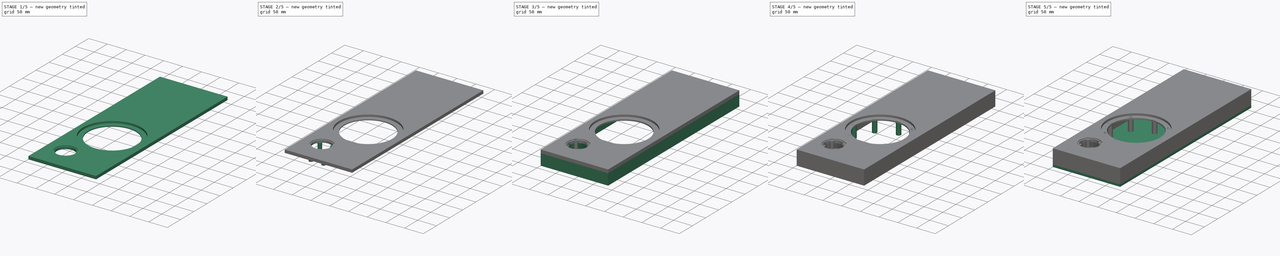
[diagram: build sequence overview — one tinted view per stage of 5, left to right]
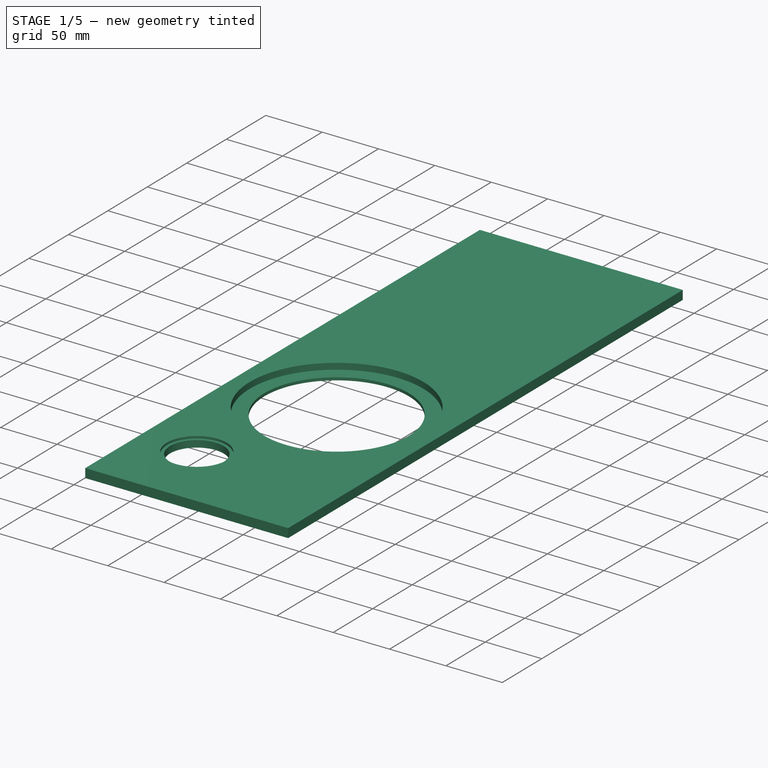
[diagram: stage 1 of 5 — iso view after this stage's code; geometry added in this stage tinted green]
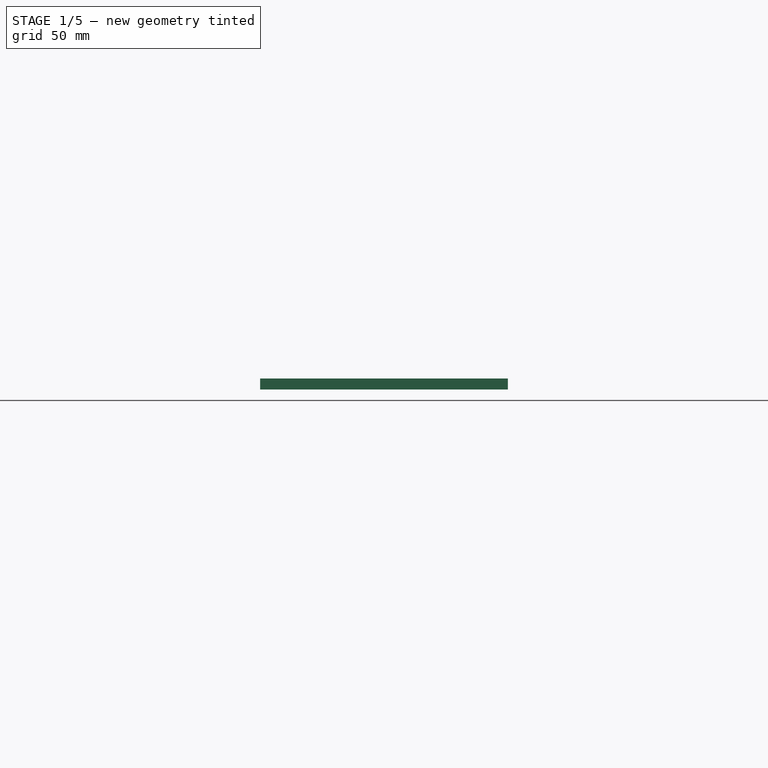
[diagram: stage 1 of 5 — front view after this stage's code; geometry added in this stage tinted green]
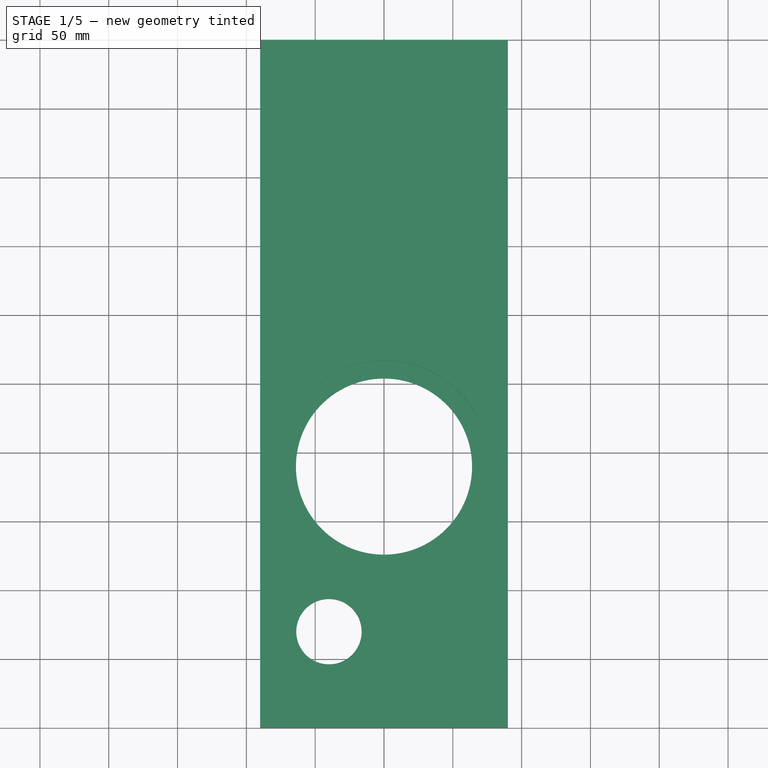
[diagram: stage 1 of 5 — top view after this stage's code; geometry added in this stage tinted green]
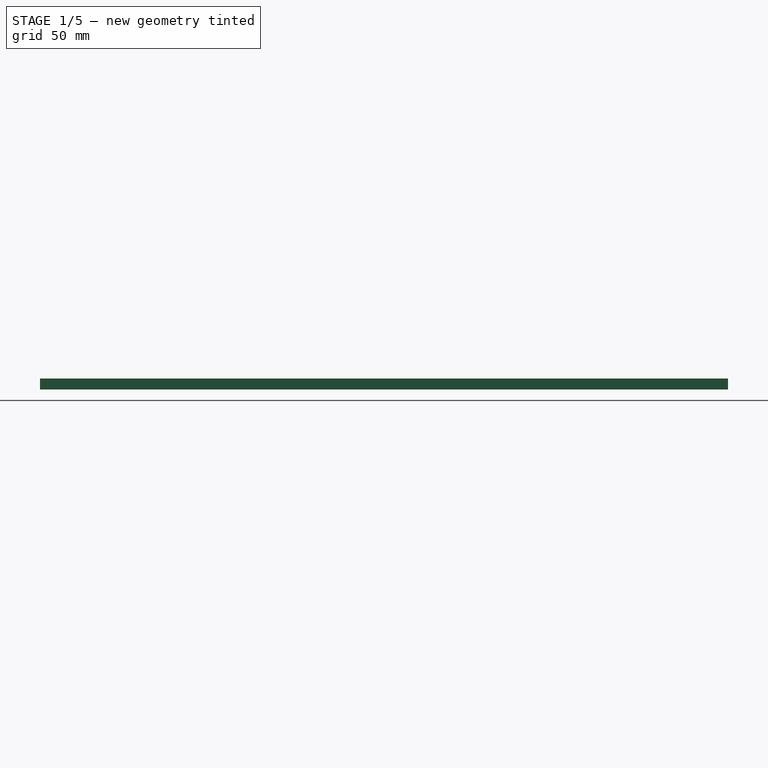
[diagram: stage 1 of 5 — right view after this stage's code; geometry added in this stage tinted green]
FCSTD DOCUMENT  (FreeCAD 0.21R33771 (Git))
Label: baffle3
License: All rights reserved
LicenseURL: http://en.wikipedia.org/wiki/All_rights_reserved
objects: Sketcher::SketchObject×9, PartDesign::Pad×6, PartDesign::Hole×4, PartDesign::PolarPattern×4, PartDesign::AdditiveCylinder×1, Spreadsheet::Sheet×1, PartDesign::Body×1
note: 36 computed .brp shape members not serialized (recipe doc carries the construction recipe); baked Part::Feature solids carry a one-line shape summary decoded from their .brp

FEATURE [Sketcher::SketchObject] Sketch  label="front panel outline"
  FullyConstrained = true
  MapMode = 5
  Placement = pos=(0,0,0) rot=(0,1,0;3.14159rad)
  Support = -> [XY_Plane]
  sketch-geometry (4):
    g0: LineSegment StartX=-90 StartY=500 StartZ=0 EndX=90 EndY=500 EndZ=0
    g1: LineSegment StartX=90 StartY=500 StartZ=0 EndX=90 EndY=0 EndZ=0
    g2: LineSegment StartX=90 StartY=0 StartZ=0 EndX=-90 EndY=0 EndZ=0
    g3: LineSegment StartX=-90 StartY=0 StartZ=0 EndX=-90 EndY=500 EndZ=0
  constraints (11):
    c: Coincident(g0,g1)
    c: Coincident(g1,g2)
    c: Coincident(g2,g3)
    c: Coincident(g3,g0)
    c: Horizontal(g0)
    c: Horizontal(g2)
    c: Vertical(g1)
    c: Vertical(g3)
    c: DistanceY(g3,g3) = 500
    c: DistanceX(g2,g2) = 180
    c: Symmetric(g2,g1,g-1)
FEATURE [PartDesign::Pad] Pad  label="front panel pad"
  Direction = (0,0,-1)
  Length = 8
  Length2 = 10
  Profile = -> Sketch
  ReferenceAxis = -> Sketch [N_Axis]
  Type = 0
  expr: Length = <<Params>>.fp_thickness
FEATURE [Sketcher::SketchObject] Sketch001  label="woofer centre"
  AttachmentOffset = pos=(0,190,0) rot=(0,0,1;0rad)
  FullyConstrained = true
  MapMode = 5
  Placement = pos=(0,190,0) rot=(0,0,1;0rad)
  Support = -> [XY_Plane]
  sketch-geometry (1):
    g0: Circle CenterX=0 CenterY=0 CenterZ=0 NormalX=0 NormalY=0 NormalZ=1 AngleXU=0 Radius=77
  constraints (2):
    c: Diameter(g0) = 154
    c: Coincident(g-1,g0)
FEATURE [PartDesign::Hole] Hole  label="woofer rebated hole"
  BaseFeature = -> Pad
  CustomThreadClearance = 0
  Depth = 25
  DepthType = 0
  Diameter = 128
  DrillForDepth = false
  DrillPoint = 1
  DrillPointAngle = 118
  HoleCutCountersinkAngle = 90
  HoleCutCustomValues = false
  HoleCutDepth = 5.5
  HoleCutDiameter = 154
  HoleCutType = 1
  ModelThread = false
  Profile = -> Sketch001
  Tapered = false
  TaperedAngle = 90
  ThreadClass = 0
  ThreadDepth = 25
  ThreadDepthType = 0
  ThreadDirection = 0
  ThreadFit = 0
  ThreadSize = 0
  ThreadType = 0
  Threaded = false
  UseCustomThreadClearance = false
FEATURE [Sketcher::SketchObject] Sketch002  label="woofer pillar"
  AttachmentOffset = pos=(0,190,-1) rot=(0,0,1;0rad)
  FullyConstrained = true
  MapMode = 5
  Placement = pos=(0,190,-1) rot=(0,0,1;0rad)
  Support = -> [XY_Plane]
  expr: .AttachmentOffset.Base.y = 190
  expr: .AttachmentOffset.Base.z = -1
  sketch-geometry (1):
    g0: Circle CenterX=49.5 CenterY=49.5 CenterZ=0 NormalX=0 NormalY=0 NormalZ=1 AngleXU=0 Radius=6
  constraints (3):
    c: Diameter(g0) = 12
    c: DistanceX(g-1,g0) = 49.5
    c: DistanceY(g-1,g0) = 49.5
FEATURE [Sketcher::SketchObject] Sketch003  label="bmr centre"
  AttachmentOffset = pos=(-40,70,0) rot=(0,0,1;0rad)
  FullyConstrained = true
  MapMode = 5
  Placement = pos=(-40,70,0) rot=(0,0,1;0rad)
  Support = -> [XY_Plane]
  sketch-geometry (1):
    g0: Circle CenterX=0 CenterY=0 CenterZ=0 NormalX=0 NormalY=0 NormalZ=1 AngleXU=0 Radius=20.75
  constraints (2):
    c: Coincident(g-1,g0)
    c: Diameter(g0) = 41.5
FEATURE [PartDesign::Hole] Hole002  label="bmr rebated hole"
  BaseFeature = -> Hole
  CustomThreadClearance = 0
  Depth = 25
  DepthType = 0
  Diameter = 47.5
  DrillForDepth = false
  DrillPoint = 1
  DrillPointAngle = 118
  HoleCutCountersinkAngle = 90
  HoleCutCustomValues = false
  HoleCutDepth = 2
  HoleCutDiameter = 53
  HoleCutType = 1
  ModelThread = false
  Profile = -> Sketch003
  Tapered = false
  TaperedAngle = 90
  ThreadClass = 0
  ThreadDepth = 25
  ThreadDepthType = 0
  ThreadDirection = 0
  ThreadFit = 0
  ThreadSize = 0
  ThreadType = 0
  Threaded = false
  UseCustomThreadClearance = false
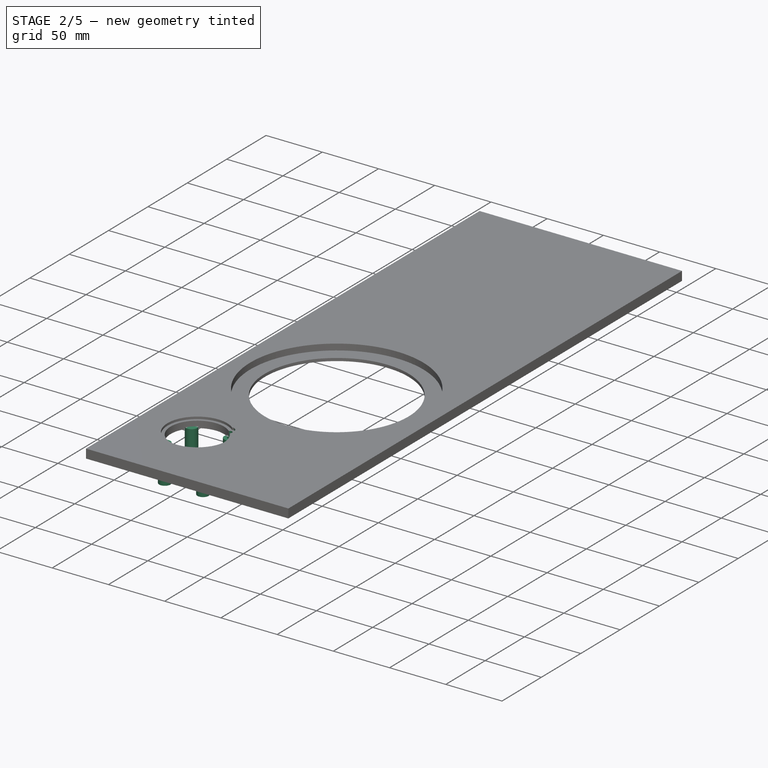
[diagram: stage 2 of 5 — iso view after this stage's code; geometry added in this stage tinted green]
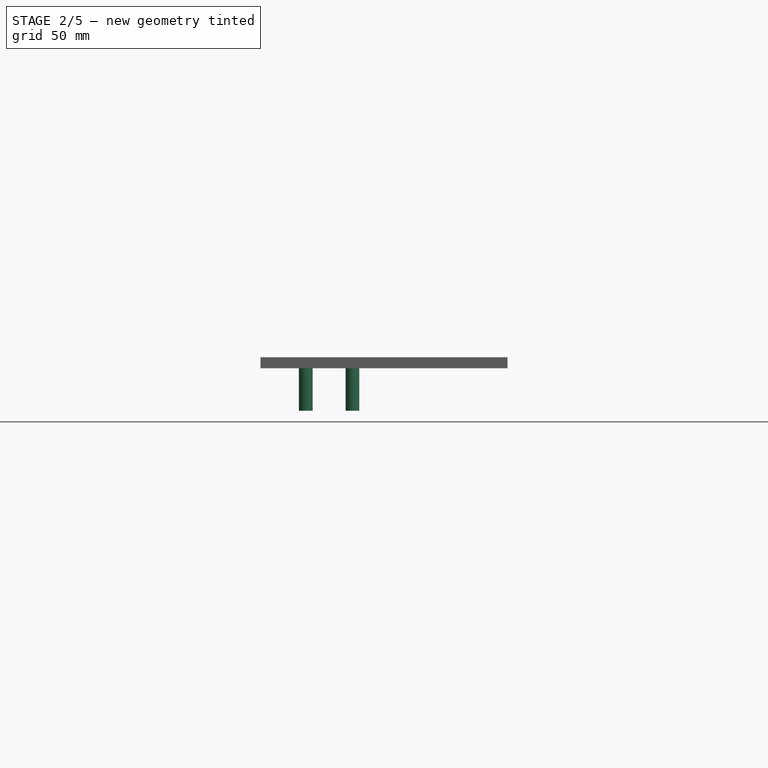
[diagram: stage 2 of 5 — front view after this stage's code; geometry added in this stage tinted green]
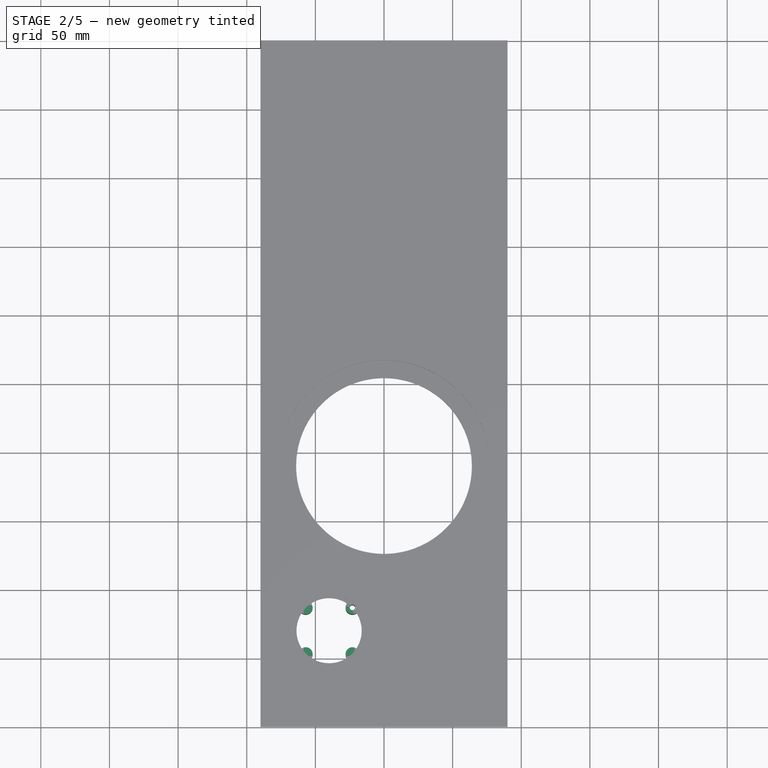
[diagram: stage 2 of 5 — top view after this stage's code; geometry added in this stage tinted green]
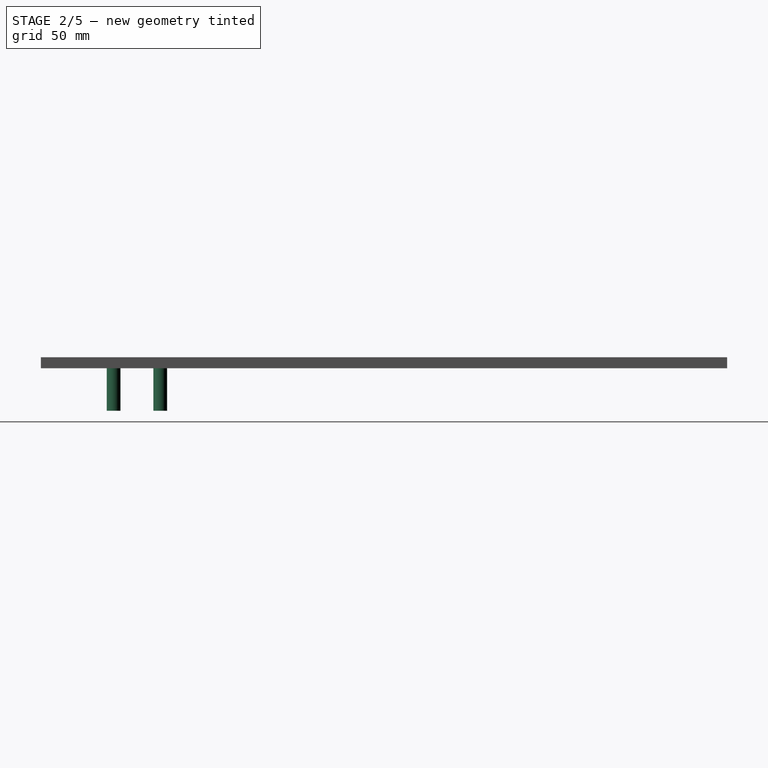
[diagram: stage 2 of 5 — right view after this stage's code; geometry added in this stage tinted green]
FEATURE [Sketcher::SketchObject] Sketch004  label="bmr posts"
  AttachmentOffset = pos=(-40,70,0) rot=(0,0,1;0rad)
  FullyConstrained = true
  MapMode = 5
  Placement = pos=(-40,70,0) rot=(0,0,1;0rad)
  Support = -> [XY_Plane]
  sketch-geometry (1):
    g0: Circle CenterX=17 CenterY=17 CenterZ=0 NormalX=0 NormalY=0 NormalZ=1 AngleXU=0 Radius=6
  constraints (3):
    c: Diameter(g0) = 12
    c: DistanceX(g-1,g0) = 17
    c: DistanceY(g-1,g0) = 17
FEATURE [PartDesign::AdditiveCylinder] Cylinder  label="bmr support pillar"
  Angle = 360
  AttacherType = Attacher::AttachEngine3D
  AttachmentOffset = pos=(0,0,-39) rot=(0,0,1;0rad)
  BaseFeature = -> Hole002
  FirstAngle = 0
  Height = 32.5
  MapMode = 11
  Placement = pos=(-23,87,-39) rot=(0,0,1;1.5708rad)
  Radius = 5
  SecondAngle = 0
  Support = -> [Sketch004]
FEATURE [PartDesign::PolarPattern] PolarPattern001  label="bmr support pillar pattern"
  Angle = 360
  Axis = -> Cylinder [Edge12]
  BaseFeature = -> Cylinder
  Occurrences = 4
  Originals = -> [Cylinder]
  Placement = pos=(-23,87,-39) rot=(0,0,1;1.5708rad)
FEATURE [PartDesign::Hole] Hole003  label="bmr insert hole"
  BaseFeature = -> PolarPattern001
  CustomThreadClearance = 0
  Depth = 1076.34
  DepthType = 1
  Diameter = 4
  DrillForDepth = false
  DrillPoint = 1
  DrillPointAngle = 118
  HoleCutCountersinkAngle = 90
  HoleCutCustomValues = false
  HoleCutDepth = 2
  HoleCutDiameter = 8
  HoleCutType = 1
  ModelThread = false
  Placement = pos=(-23,87,-39) rot=(0,0,1;1.5708rad)
  Profile = -> Sketch004
  Tapered = false
  TaperedAngle = 90
  ThreadClass = 0
  ThreadDepth = 1076.34
  ThreadDepthType = 0
  ThreadDirection = 0
  ThreadFit = 0
  ThreadSize = 0
  ThreadType = 0
  Threaded = false
  UseCustomThreadClearance = false
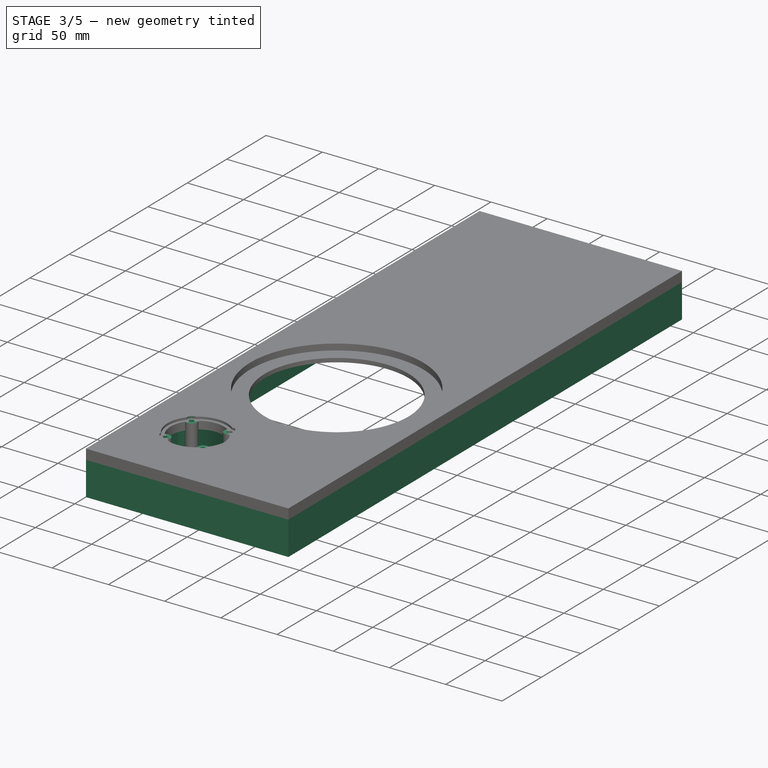
[diagram: stage 3 of 5 — iso view after this stage's code; geometry added in this stage tinted green]
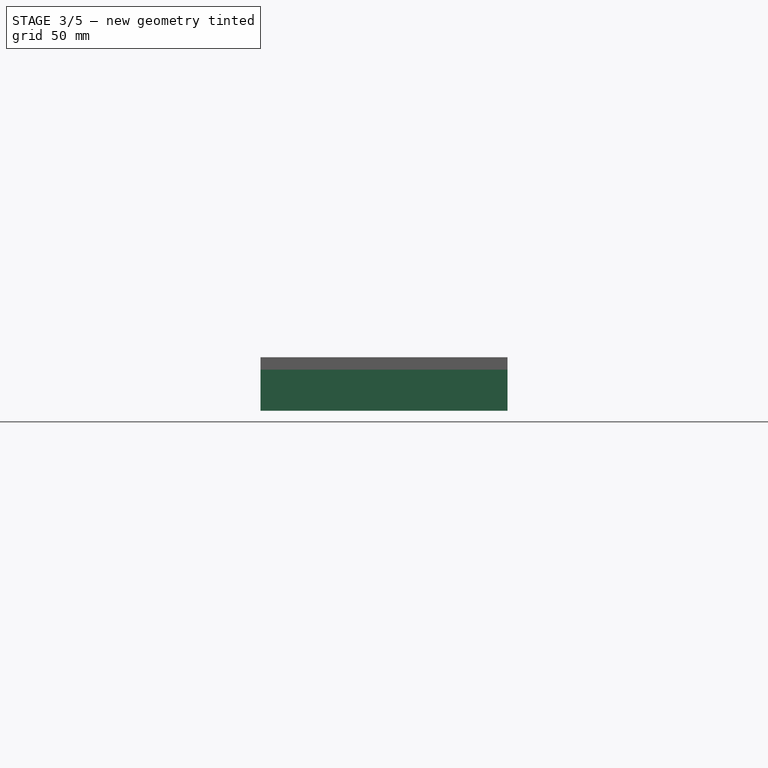
[diagram: stage 3 of 5 — front view after this stage's code; geometry added in this stage tinted green]
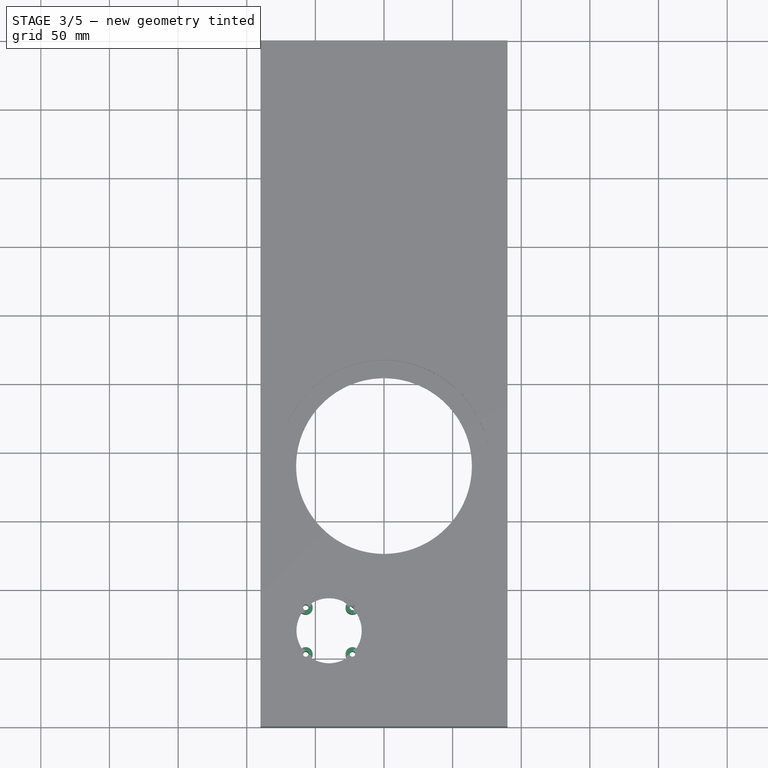
[diagram: stage 3 of 5 — top view after this stage's code; geometry added in this stage tinted green]
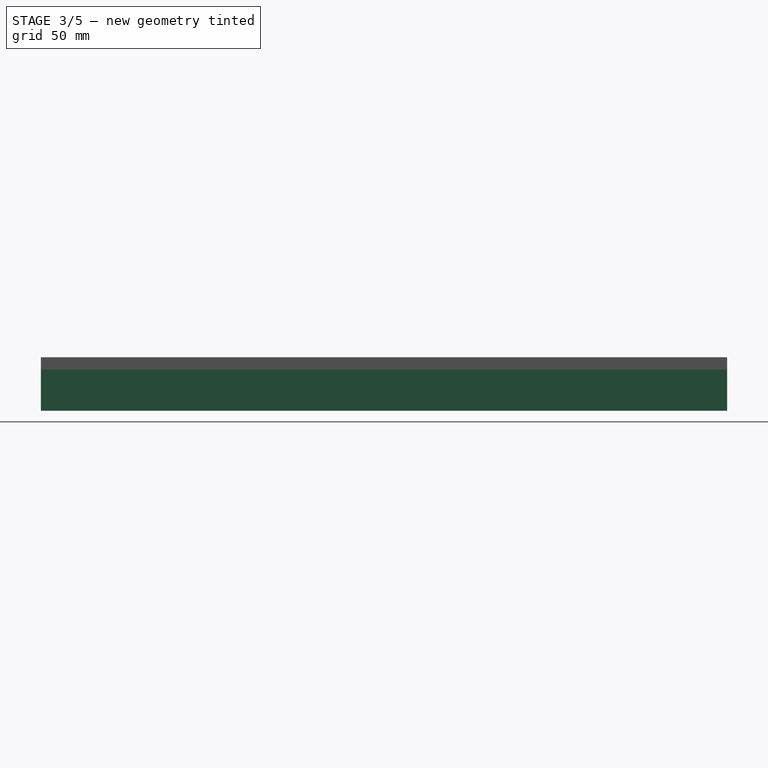
[diagram: stage 3 of 5 — right view after this stage's code; geometry added in this stage tinted green]
FEATURE [PartDesign::PolarPattern] PolarPattern002  label="bmr insert hole pattern"
  Angle = 360
  Axis = -> Sketch004 [N_Axis]
  BaseFeature = -> Hole003
  Occurrences = 4
  Originals = -> [Hole003]
  Placement = pos=(-23,87,-39) rot=(0,0,1;1.5708rad)
FEATURE [Sketcher::SketchObject] Sketch005  label="external walls"
  AttachmentOffset = pos=(0,0,9) rot=(0,0,1;0rad)
  FullyConstrained = true
  MapMode = 5
  Placement = pos=(0,0,-9) rot=(0,1,0;3.14159rad)
  Support = -> [XY_Plane]
  sketch-geometry (8):
    g0: LineSegment StartX=-90 StartY=500 StartZ=0 EndX=90 EndY=500 EndZ=0
    g1: LineSegment StartX=90 StartY=500 StartZ=0 EndX=90 EndY=0 EndZ=0
    g2: LineSegment StartX=90 StartY=0 StartZ=0 EndX=-90 EndY=0 EndZ=0
    g3: LineSegment StartX=-90 StartY=0 StartZ=0 EndX=-90 EndY=500 EndZ=0
    g4: LineSegment StartX=-85 StartY=492 StartZ=0 EndX=85 EndY=492 EndZ=0
    g5: LineSegment StartX=85 StartY=492 StartZ=0 EndX=85 EndY=8 EndZ=0
    g6: LineSegment StartX=85 StartY=8 StartZ=0 EndX=-85 EndY=8 EndZ=0
    g7: LineSegment StartX=-85 StartY=8 StartZ=0 EndX=-85 EndY=492 EndZ=0
  constraints (23):
    c: Coincident(g0,g1)
    c: Coincident(g1,g2)
    c: Coincident(g2,g3)
    c: Coincident(g3,g0)
    c: Horizontal(g0)
    c: Horizontal(g2)
    c: Vertical(g1)
    c: Vertical(g3)
    c: DistanceY(g3,g3) = 500
    c: DistanceX(g2,g2) = 180
    c: Symmetric(g2,g1,g-1)
    c: Coincident(g4,g5)
    c: Coincident(g5,g6)
    c: Coincident(g6,g7)
    c: Coincident(g7,g4)
    c: Horizontal(g4)
    c: Horizontal(g6)
    c: Vertical(g5)
    c: Vertical(g7)
    c: DistanceY(g7,g7) = 484
    c: DistanceX(g4,g4) = 170
    c: Symmetric(g4,g4,g-2)
    c: Distance(g6,g2) = 8
FEATURE [PartDesign::Pad] Pad001  label="external walls pad"
  BaseFeature = -> PolarPattern002
  Direction = (0,0,-1)
  Length = 30
  Length2 = 10
  Placement = pos=(-23,87,-39) rot=(0,0,1;1.5708rad)
  Profile = -> Sketch005
  ReferenceAxis = -> Sketch005 [N_Axis]
  Type = 0
FEATURE [Sketcher::SketchObject] Sketch006  label="internal wall"
  AttachmentOffset = pos=(0,0,-9) rot=(0,0,1;0rad)
  FullyConstrained = true
  MapMode = 5
  Placement = pos=(0,0,-9) rot=(0,0,1;0rad)
  Support = -> [XY_Plane]
  sketch-geometry (4):
    g0: ArcOfCircle CenterX=-90 CenterY=0 CenterZ=0 NormalX=0 NormalY=0 NormalZ=1 AngleXU=0 Radius=110 StartAngle=0 EndAngle=1.5708
    g1: ArcOfCircle CenterX=-90 CenterY=0 CenterZ=0 NormalX=0 NormalY=0 NormalZ=1 AngleXU=0 Radius=115 StartAngle=0 EndAngle=1.5708
    g2: LineSegment StartX=-90 StartY=115 StartZ=0 EndX=-90 EndY=110 EndZ=0
    g3: LineSegment StartX=25 StartY=0 StartZ=0 EndX=20 EndY=0 EndZ=0
  constraints (13):
    c: DistanceX(g0,g-1) = 90
    c: DistanceY(g-1,g0) = 0
    c: DistanceX(g0,g0) = 0
    c: DistanceY(g0,g0) = 0
    c: Diameter(g0) = 220
    c: Coincident(g1,g0)
    c: PointOnObject(g1,g-1)
    c: Angle(g1) = 1.5708
    c: Radius(g1) = 115
    c: Coincident(g2,g1)
    c: Coincident(g2,g0)
    c: Coincident(g3,g1)
    c: Coincident(g3,g0)
FEATURE [PartDesign::Pad] Pad002  label="internal wall pad"
  BaseFeature = -> Pad001
  Direction = (0,0,1)
  Length = 30
  Length2 = 10
  Placement = pos=(-23,87,-39) rot=(0,0,1;1.5708rad)
  Profile = -> Sketch006
  ReferenceAxis = -> Sketch006 [N_Axis]
  Reversed = true
  Type = 0
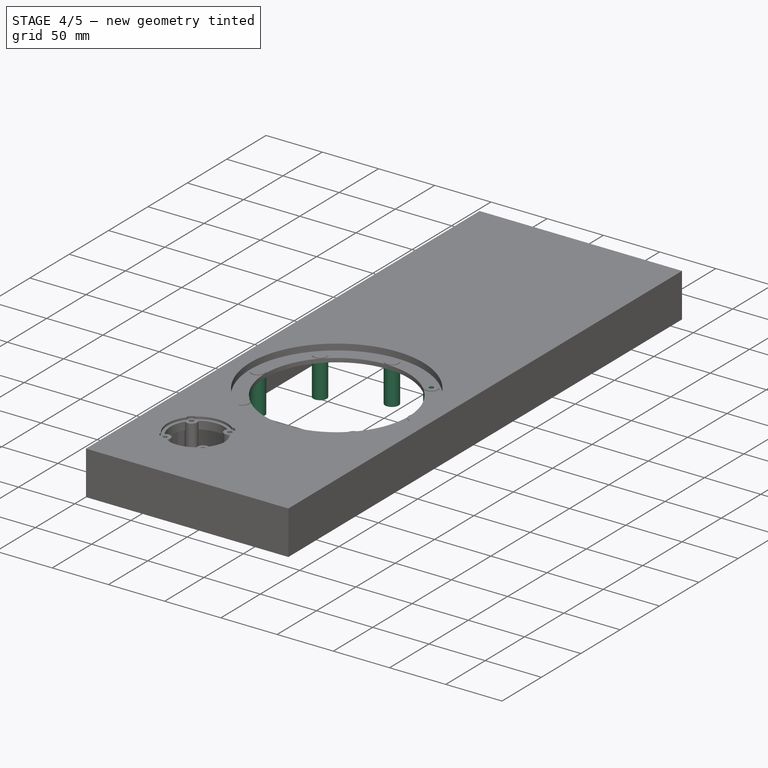
[diagram: stage 4 of 5 — iso view after this stage's code; geometry added in this stage tinted green]
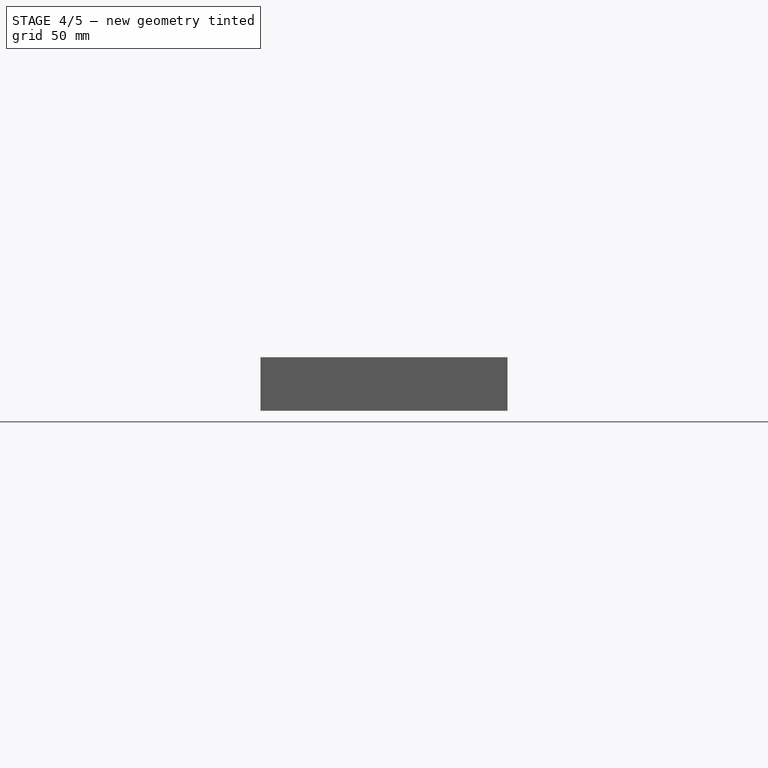
[diagram: stage 4 of 5 — front view after this stage's code; geometry added in this stage tinted green]
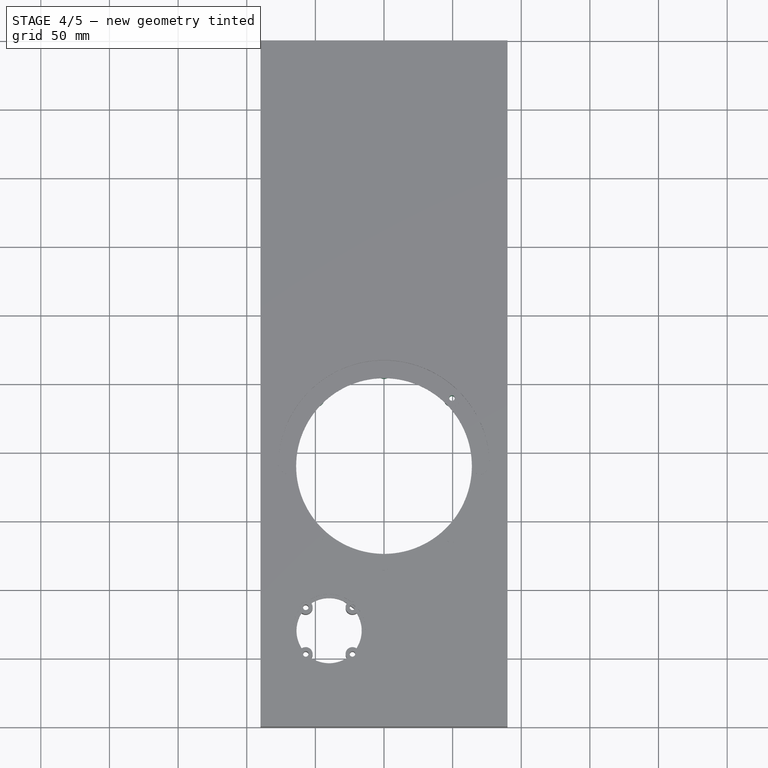
[diagram: stage 4 of 5 — top view after this stage's code; geometry added in this stage tinted green]
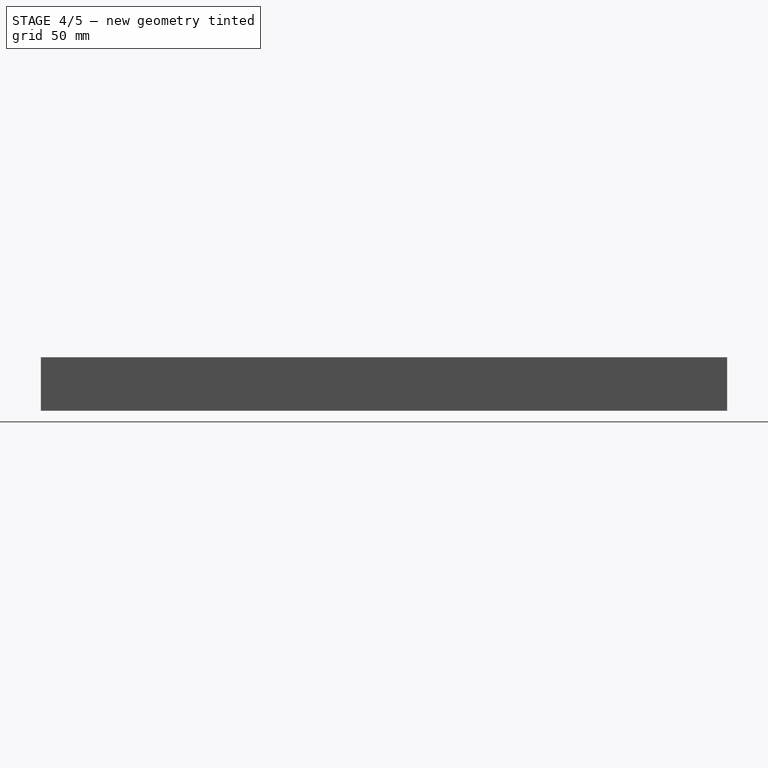
[diagram: stage 4 of 5 — right view after this stage's code; geometry added in this stage tinted green]
FEATURE [PartDesign::Pad] Pad003  label="woofer pillar pad"
  BaseFeature = -> Pad002
  Direction = (0,0,1)
  Length = 32.5
  Length2 = 10
  Placement = pos=(-23,87,-39) rot=(0,0,1;1.5708rad)
  Profile = -> Sketch002
  ReferenceAxis = -> Sketch002 [N_Axis]
  Reversed = true
  Type = 0
  expr: Length = <<Params>>.internal_depth
FEATURE [PartDesign::PolarPattern] PolarPattern003  label="woofer pillar pattern"
  Angle = 360
  Axis = -> Sketch002 [N_Axis]
  BaseFeature = -> Pad003
  Occurrences = 8
  Originals = -> [Pad003]
  Placement = pos=(-23,87,-39) rot=(0,0,1;1.5708rad)
FEATURE [PartDesign::Hole] Hole001  label="woofer insert hole"
  BaseFeature = -> PolarPattern003
  CustomThreadClearance = 0
  Depth = 1076.34
  DepthType = 1
  Diameter = 4
  DrillForDepth = false
  DrillPoint = 1
  DrillPointAngle = 118
  HoleCutCountersinkAngle = 90
  HoleCutCustomValues = false
  HoleCutDepth = 0
  HoleCutDiameter = 10
  HoleCutType = 0
  ModelThread = false
  Placement = pos=(-23,87,-39) rot=(0,0,1;1.5708rad)
  Profile = -> Sketch002
  Tapered = false
  TaperedAngle = 90
  ThreadClass = 0
  ThreadDepth = 1076.34
  ThreadDepthType = 0
  ThreadDirection = 0
  ThreadFit = 0
  ThreadSize = 0
  ThreadType = 0
  Threaded = false
  UseCustomThreadClearance = false
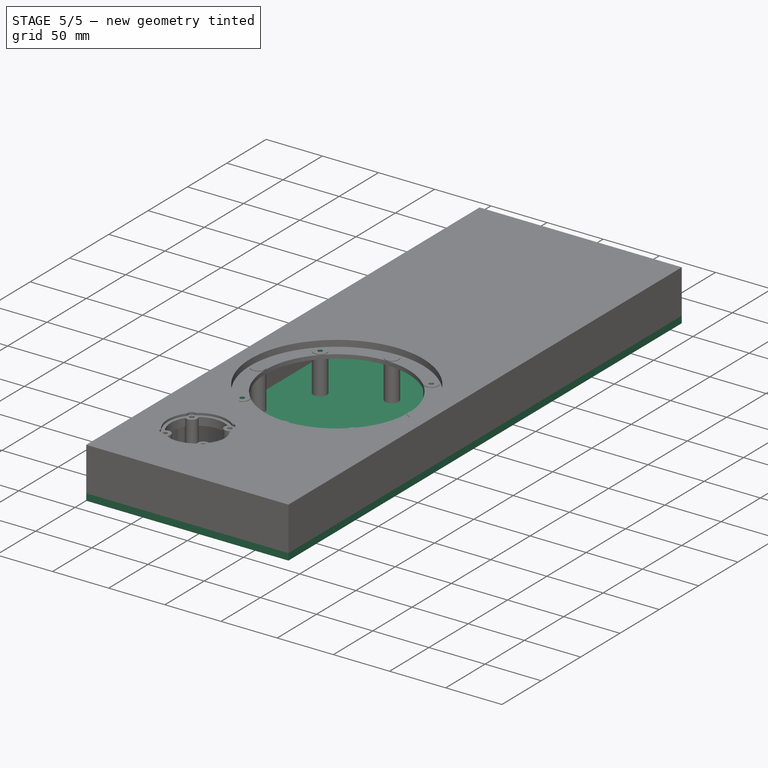
[diagram: stage 5 of 5 — iso view after this stage's code; geometry added in this stage tinted green]
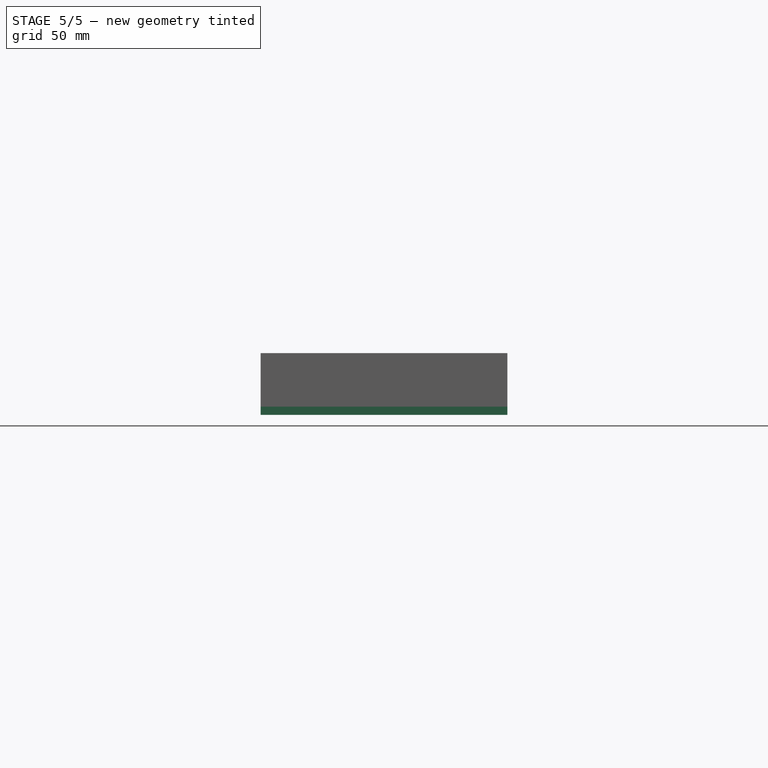
[diagram: stage 5 of 5 — front view after this stage's code; geometry added in this stage tinted green]
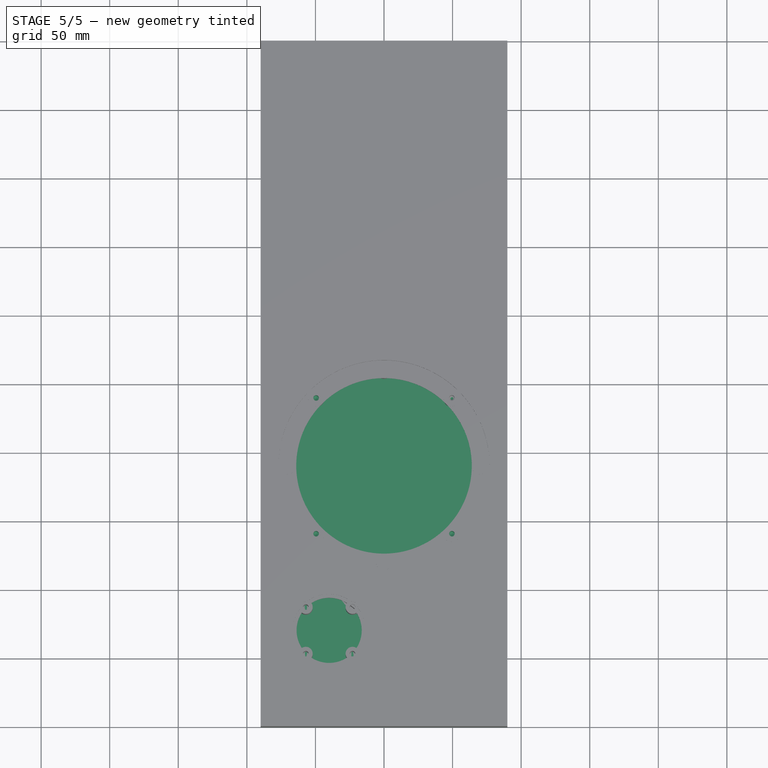
[diagram: stage 5 of 5 — top view after this stage's code; geometry added in this stage tinted green]
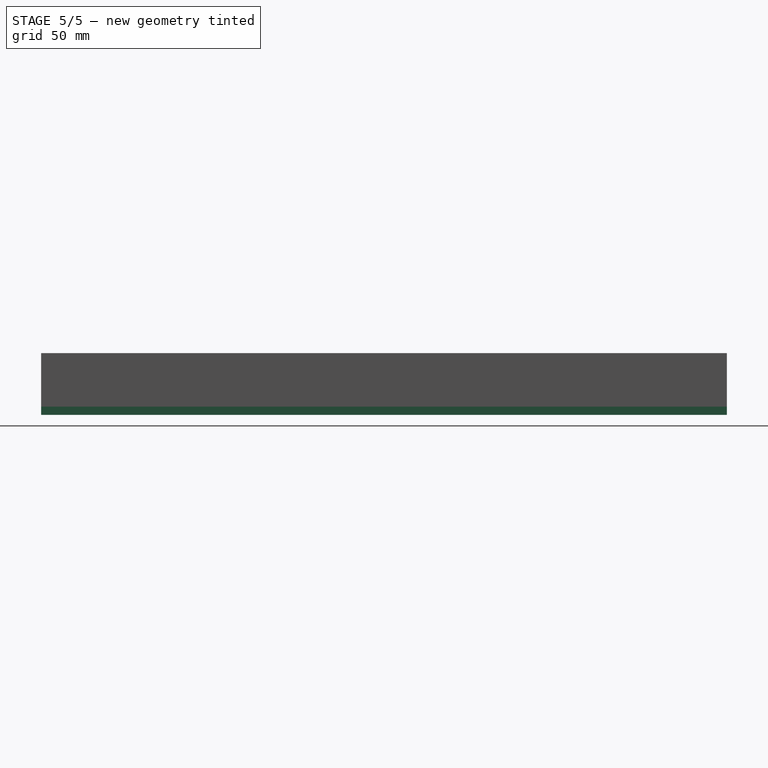
[diagram: stage 5 of 5 — right view after this stage's code; geometry added in this stage tinted green]
FEATURE [PartDesign::PolarPattern] PolarPattern  label="woofer insert holes pattern"
  Angle = 360
  Axis = -> Sketch002 [N_Axis]
  BaseFeature = -> Hole001
  Occurrences = 4
  Originals = -> [Hole001]
  Placement = pos=(-23,87,-39) rot=(0,0,1;1.5708rad)
FEATURE [Sketcher::SketchObject] Sketch007  label="central pillar"
  AttachmentOffset = pos=(0,360,-9) rot=(0,0,1;0rad)
  FullyConstrained = true
  MapMode = 5
  Placement = pos=(0,360,-9) rot=(0,0,1;0rad)
  Support = -> [XY_Plane]
  sketch-geometry (4):
    g0: LineSegment StartX=-5 StartY=70 StartZ=0 EndX=5 EndY=70 EndZ=0
    g1: LineSegment StartX=5 StartY=70 StartZ=0 EndX=5 EndY=0 EndZ=0
    g2: LineSegment StartX=5 StartY=0 StartZ=0 EndX=-5 EndY=0 EndZ=0
    g3: LineSegment StartX=-5 StartY=0 StartZ=0 EndX=-5 EndY=70 EndZ=0
  constraints (11):
    c: Coincident(g0,g1)
    c: Coincident(g1,g2)
    c: Coincident(g2,g3)
    c: Coincident(g3,g0)
    c: Horizontal(g0)
    c: Horizontal(g2)
    c: Vertical(g1)
    c: Vertical(g3)
    c: Symmetric(g2,g1,g-1)
    c: DistanceX(g2,g1) = 10
    c: DistanceY(g-1,g0) = 70
FEATURE [PartDesign::Pad] Pad004  label="woofer brace"
  BaseFeature = -> PolarPattern
  Direction = (0,0,1)
  Length = 30
  Length2 = 10
  Placement = pos=(-23,87,-39) rot=(0,0,1;1.5708rad)
  Profile = -> Sketch007
  ReferenceAxis = -> Sketch007 [N_Axis]
  Reversed = true
  Type = 0
FEATURE [Sketcher::SketchObject] Sketch008  label="back panel outline"
  AttachmentOffset = pos=(0,0,38) rot=(0,0,1;0rad)
  FullyConstrained = true
  MapMode = 5
  Placement = pos=(0,0,-38) rot=(0,1,0;3.14159rad)
  Support = -> [XY_Plane]
  expr: .AttachmentOffset.Base.z = <<Params>>.woofer_rebate + <<Params>>.internal_depth
  sketch-geometry (4):
    g0: LineSegment StartX=-90 StartY=500 StartZ=0 EndX=90 EndY=500 EndZ=0
    g1: LineSegment StartX=90 StartY=500 StartZ=0 EndX=90 EndY=0 EndZ=0
    g2: LineSegment StartX=90 StartY=0 StartZ=0 EndX=-90 EndY=0 EndZ=0
    g3: LineSegment StartX=-90 StartY=0 StartZ=0 EndX=-90 EndY=500 EndZ=0
  constraints (11):
    c: Coincident(g0,g1)
    c: Coincident(g1,g2)
    c: Coincident(g2,g3)
    c: Coincident(g3,g0)
    c: Horizontal(g0)
    c: Horizontal(g2)
    c: Vertical(g1)
    c: Vertical(g3)
    c: DistanceY(g3,g3) = 500
    c: DistanceX(g2,g2) = 180
    c: Symmetric(g2,g1,g-1)
FEATURE [Spreadsheet::Sheet] Spreadsheet  label="Params"
  cells = A1='woofer_depth; B1(woofer_depth)=38; A2='woofer_rebate; B2(woofer_rebate)=5.5; A3='internal_depth; B3(internal_depth)==38 - 5.5; A4='bp_thickness; B4(bp_thickness)=6; A5='fp_thickness; B5(fp_thickness)=8
FEATURE [PartDesign::Pad] Pad005  label="back panel"
  BaseFeature = -> Pad004
  Direction = (0,0,-1)
  Length = 6
  Length2 = 10
  Placement = pos=(-23,87,-39) rot=(0,0,1;1.5708rad)
  Profile = -> Sketch008
  ReferenceAxis = -> Sketch008 [N_Axis]
  Type = 0
  expr: Length = <<Params>>.bp_thickness
FEATURE [PartDesign::Body] Body
  Group = -> [Sketch,Pad,Sketch001,Hole,Sketch002,Sketch003,Hole002,Sketch004,Cylinder,PolarPattern001,Hole003,PolarPattern002,Sketch005,Pad001,Sketch006,Pad002,Pad003,PolarPattern003,Hole001,PolarPattern,Sketch007,Pad004,Sketch008,Pad005]
  Origin = -> Origin
  Tip = -> Pad005
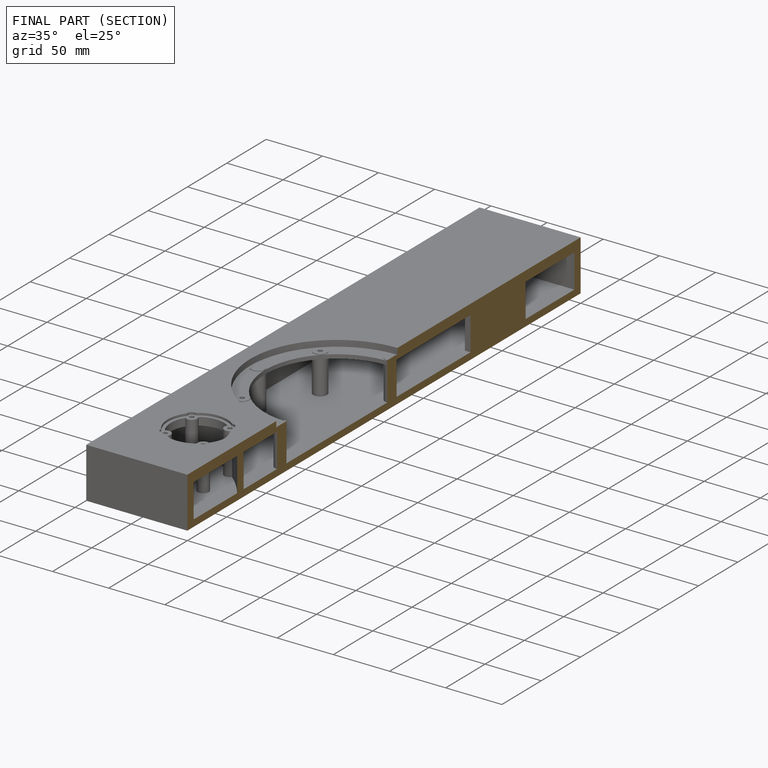
[diagram: finished part — half-section view (interior)]
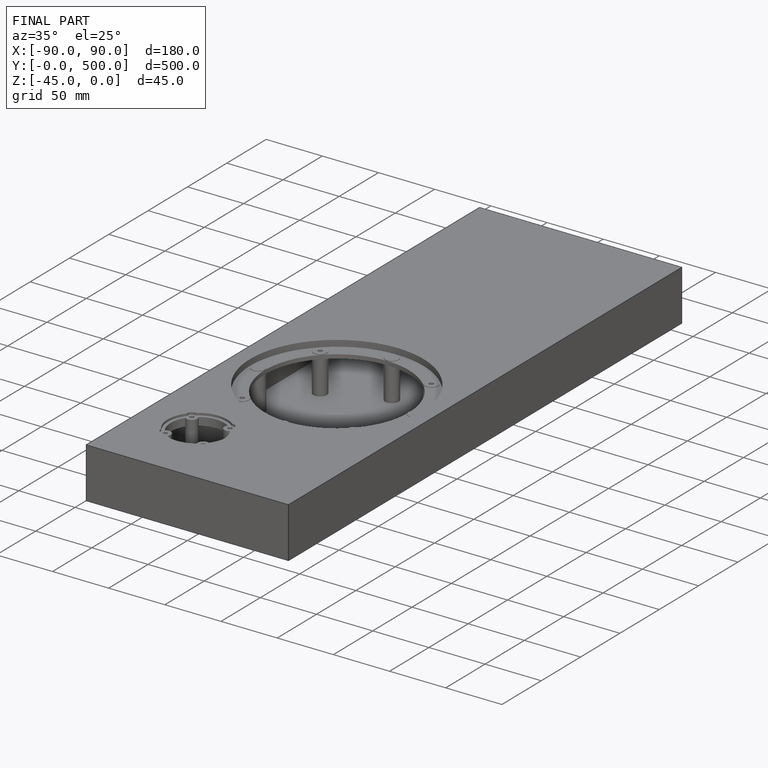
[diagram: finished part — iso view with bounding-box wireframe]
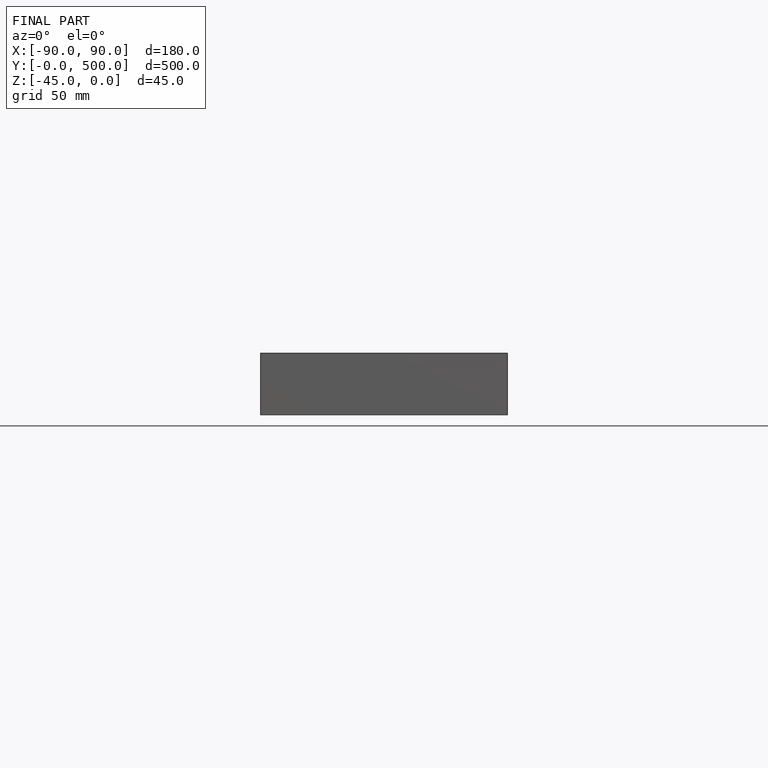
[diagram: finished part — front view with bounding-box wireframe]
